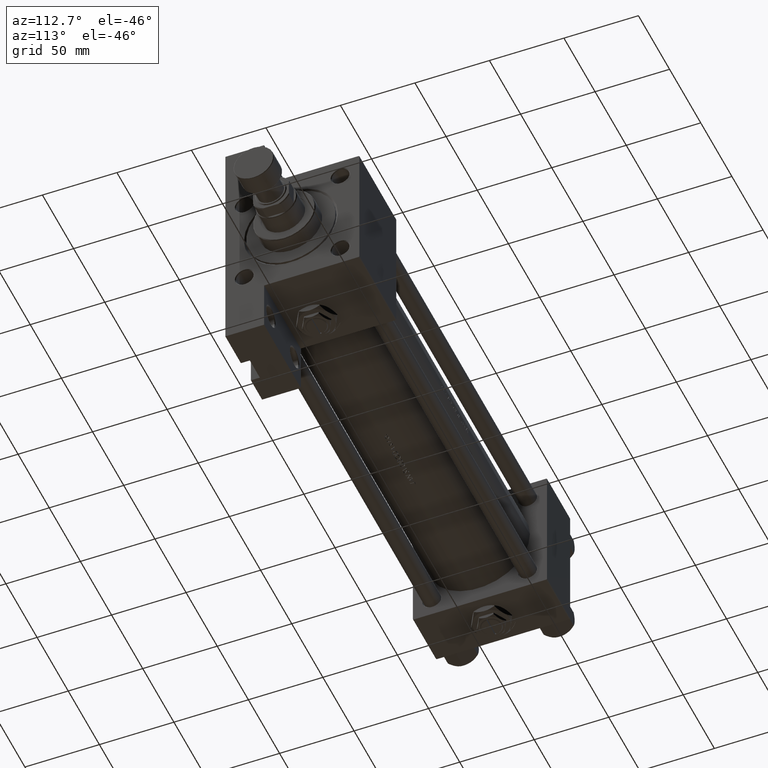
[diagram: clean part render]
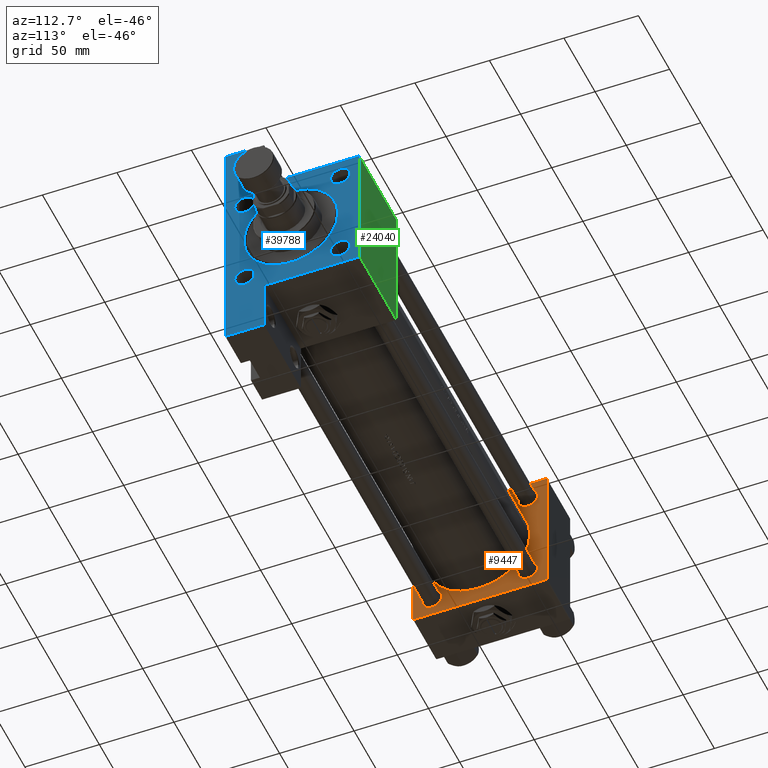
[diagram: same view with three faces highlighted in distinct colors, each labeled with its STEP entity id]
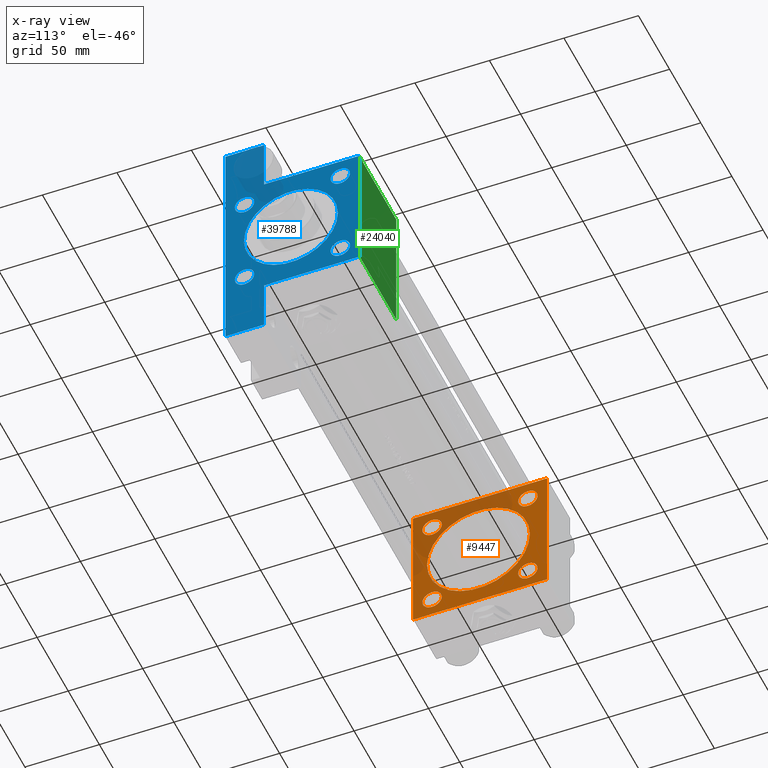
[diagram: x-ray of the same camera — body ghosted, the three highlighted faces saturated]
A machine part, auxiliary view with three faces highlighted in distinct colors.
The next image is the same camera in x-ray (body ghosted, the three faces saturated) — at least one of them is partly hidden behind the body in this view.
Their STEP definitions:

[orange] entity #9447 — the highlighted planar face has unit normal (-1, 0, -0).
#598 = EDGE_CURVE ( 'NONE', #38871, #3608, #38260, .T. ) ;
#798 = EDGE_LOOP ( 'NONE', ( #18175, #12157 ) ) ;
#1047 = DIRECTION ( 'NONE',  ( 0.000000000000000000, 0.000000000000000000, -1.000000000000000000 ) ) ;
#1239 = VECTOR ( 'NONE', #5825, 1000.000000000000114 ) ;
#1397 = CIRCLE ( 'NONE', #4635, 6.499999999999977796 ) ;
#1512 = EDGE_CURVE ( 'NONE', #44599, #5175, #39663, .T. ) ;
#1852 = FACE_BOUND ( 'NONE', #27197, .T. ) ;
#2523 = CIRCLE ( 'NONE', #15484, 34.49999999999999289 ) ;
#2929 = VECTOR ( 'NONE', #21690, 1000.000000000000114 ) ;
#3053 = VERTEX_POINT ( 'NONE', #46174 ) ;
#3078 = CARTESIAN_POINT ( 'NONE',  ( 37.00000000000000000, 44.49999999999998579, 45.00000000000001421 ) ) ;
#3127 = VERTEX_POINT ( 'NONE', #38814 ) ;
#3575 = LINE ( 'NONE', #3078, #35132 ) ;
#3608 = VERTEX_POINT ( 'NONE', #8748 ) ;
#3804 = CARTESIAN_POINT ( 'NONE',  ( 37.00000000000000000, 32.14999999999999147, -32.15000000000000568 ) ) ;
#3848 = ORIENTED_EDGE ( 'NONE', *, *, #20050, .T. ) ;
#4635 = AXIS2_PLACEMENT_3D ( 'NONE', #21201, #17629, #14069 ) ;
#4649 = PLANE ( 'NONE',  #11714 ) ;
#4668 = EDGE_CURVE ( 'NONE', #37748, #21903, #39915, .T. ) ;
#4730 = VECTOR ( 'NONE', #1047, 1000.000000000000000 ) ;
#5158 = FACE_BOUND ( 'NONE', #34799, .T. ) ;
#5175 = VERTEX_POINT ( 'NONE', #21342 ) ;
#5325 = CARTESIAN_POINT ( 'NONE',  ( 37.00000000000000000, 44.49999999999998579, 45.00000000000001421 ) ) ;
#5825 = DIRECTION ( 'NONE',  ( -0.000000000000000000, 0.7071067811865474617, 0.7071067811865474617 ) ) ;
#6373 = EDGE_CURVE ( 'NONE', #19336, #21423, #26223, .T. ) ;
#6535 = CARTESIAN_POINT ( 'NONE',  ( 37.00000000000000711, 0.000000000000000000, 33.49999999999998579 ) ) ;
#7042 = EDGE_CURVE ( 'NONE', #10413, #49376, #3575, .T. ) ;
#7147 = ORIENTED_EDGE ( 'NONE', *, *, #19635, .T. ) ;
#7801 = DIRECTION ( 'NONE',  ( 0.000000000000000000, 0.000000000000000000, 1.000000000000000000 ) ) ;
#7891 = LINE ( 'NONE', #43684, #4730 ) ;
#8435 = ORIENTED_EDGE ( 'NONE', *, *, #15475, .T. ) ;
#8439 = DIRECTION ( 'NONE',  ( -1.000000000000000000, 0.000000000000000000, -0.000000000000000000 ) ) ;
#8595 = DIRECTION ( 'NONE',  ( 0.000000000000000000, 0.000000000000000000, 1.000000000000000000 ) ) ;
#8659 = CIRCLE ( 'NONE', #38647, 6.499999999999977796 ) ;
#8707 = ORIENTED_EDGE ( 'NONE', *, *, #23691, .T. ) ;
#8748 = CARTESIAN_POINT ( 'NONE',  ( 37.00000000000000711, 4.225031457058367344E-15, -35.50000000000000711 ) ) ;
#9325 = DIRECTION ( 'NONE',  ( 0.000000000000000000, 0.000000000000000000, 1.000000000000000000 ) ) ;
#9447 = ADVANCED_FACE ( 'NONE', ( #1852, #44000, #5158, #9454, #20912, #27746 ), #4649, .F. ) ;
#9454 = FACE_BOUND ( 'NONE', #798, .T. ) ;
#10216 = CARTESIAN_POINT ( 'NONE',  ( 37.00000000000000000, 44.99999999999998579, 44.50000000000001421 ) ) ;
#10413 = VERTEX_POINT ( 'NONE', #10216 ) ;
#10937 = VECTOR ( 'NONE', #15648, 1000.000000000000000 ) ;
#11103 = EDGE_LOOP ( 'NONE', ( #21380, #36272 ) ) ;
#11714 = AXIS2_PLACEMENT_3D ( 'NONE', #17330, #31812, #47303 ) ;
#12157 = ORIENTED_EDGE ( 'NONE', *, *, #6373, .T. ) ;
#12425 = ORIENTED_EDGE ( 'NONE', *, *, #20390, .T. ) ;
#13014 = CARTESIAN_POINT ( 'NONE',  ( 37.00000000000000711, 0.000000000000000000, -1.000000000000007772 ) ) ;
#13735 = VERTEX_POINT ( 'NONE', #17809 ) ;
#14069 = DIRECTION ( 'NONE',  ( 0.000000000000000000, 0.000000000000000000, 1.000000000000000000 ) ) ;
#15052 = CARTESIAN_POINT ( 'NONE',  ( 37.00000000000000000, -45.00000000000000711, 44.49999999999997158 ) ) ;
#15475 = EDGE_CURVE ( 'NONE', #3053, #13735, #8659, .T. ) ;
#15484 = AXIS2_PLACEMENT_3D ( 'NONE', #13014, #26133, #48730 ) ;
#15648 = DIRECTION ( 'NONE',  ( 0.000000000000000000, 7.709882115452476934E-17, -1.000000000000000000 ) ) ;
#16180 = DIRECTION ( 'NONE',  ( 0.000000000000000000, -1.000000000000000000, -1.541976423090495387E-16 ) ) ;
#16385 = VERTEX_POINT ( 'NONE', #45461 ) ;
#16992 = EDGE_CURVE ( 'NONE', #21903, #37748, #35459, .T. ) ;
#17299 = AXIS2_PLACEMENT_3D ( 'NONE', #35480, #42593, #7801 ) ;
#17318 = DIRECTION ( 'NONE',  ( 0.000000000000000000, -1.000000000000000000, -1.541976423090495633E-16 ) ) ;
#17330 = CARTESIAN_POINT ( 'NONE',  ( 37.00000000000000000, 0.000000000000000000, 0.000000000000000000 ) ) ;
#17629 = DIRECTION ( 'NONE',  ( -1.000000000000000000, 0.000000000000000000, -0.000000000000000000 ) ) ;
#17725 = DIRECTION ( 'NONE',  ( 0.000000000000000000, 0.7071067811865474617, -0.7071067811865474617 ) ) ;
#17746 = DIRECTION ( 'NONE',  ( 0.000000000000000000, 0.000000000000000000, 1.000000000000000000 ) ) ;
#17809 = CARTESIAN_POINT ( 'NONE',  ( 37.00000000000000000, 32.14999999999999147, -25.65000000000002700 ) ) ;
#18175 = ORIENTED_EDGE ( 'NONE', *, *, #41612, .T. ) ;
#18695 = CARTESIAN_POINT ( 'NONE',  ( 37.00000000000000000, 32.14999999999999147, 38.64999999999998437 ) ) ;
#18846 = VECTOR ( 'NONE', #17318, 1000.000000000000000 ) ;
#19336 = VERTEX_POINT ( 'NONE', #18695 ) ;
#19559 = DIRECTION ( 'NONE',  ( -1.000000000000000000, 0.000000000000000000, -0.000000000000000000 ) ) ;
#19635 = EDGE_CURVE ( 'NONE', #13735, #3053, #1397, .T. ) ;
#20050 = EDGE_CURVE ( 'NONE', #44599, #3127, #21084, .T. ) ;
#20390 = EDGE_CURVE ( 'NONE', #30279, #33167, #49854, .T. ) ;
#20912 = FACE_BOUND ( 'NONE', #11103, .T. ) ;
#21084 = LINE ( 'NONE', #24642, #1239 ) ;
#21201 = CARTESIAN_POINT ( 'NONE',  ( 37.00000000000000000, 32.14999999999999147, -32.15000000000000568 ) ) ;
#21342 = CARTESIAN_POINT ( 'NONE',  ( 37.00000000000000000, -44.49999999999995737, -45.00000000000000000 ) ) ;
#21380 = ORIENTED_EDGE ( 'NONE', *, *, #598, .F. ) ;
#21423 = VERTEX_POINT ( 'NONE', #33065 ) ;
#21690 = DIRECTION ( 'NONE',  ( -0.000000000000000000, -0.7071067811865425767, -0.7071067811865524577 ) ) ;
#21903 = VERTEX_POINT ( 'NONE', #28075 ) ;
#21922 = CIRCLE ( 'NONE', #39738, 6.499999999999977796 ) ;
#23204 = DIRECTION ( 'NONE',  ( 0.000000000000000000, 0.000000000000000000, 1.000000000000000000 ) ) ;
#23691 = EDGE_CURVE ( 'NONE', #39763, #16385, #27576, .T. ) ;
#23813 = LINE ( 'NONE', #34985, #27490 ) ;
#24416 = AXIS2_PLACEMENT_3D ( 'NONE', #46287, #8439, #47046 ) ;
#24642 = CARTESIAN_POINT ( 'NONE',  ( 37.00000000000000000, 44.99999999999998579, -44.49999999999998579 ) ) ;
#26133 = DIRECTION ( 'NONE',  ( 1.000000000000000000, -0.000000000000000000, 0.000000000000000000 ) ) ;
#26223 = CIRCLE ( 'NONE', #17299, 6.499999999999977796 ) ;
#26482 = EDGE_CURVE ( 'NONE', #40179, #39763, #34350, .T. ) ;
#27176 = AXIS2_PLACEMENT_3D ( 'NONE', #38436, #35123, #23204 ) ;
#27197 = EDGE_LOOP ( 'NONE', ( #49648, #41428 ) ) ;
#27490 = VECTOR ( 'NONE', #16180, 1000.000000000000000 ) ;
#27548 = CARTESIAN_POINT ( 'NONE',  ( 37.00000000000000000, -32.14999999999997726, 25.65000000000003411 ) ) ;
#27576 = LINE ( 'NONE', #31140, #10937 ) ;
#27746 = FACE_OUTER_BOUND ( 'NONE', #49356, .T. ) ;
#27805 = ORIENTED_EDGE ( 'NONE', *, *, #7042, .T. ) ;
#28075 = CARTESIAN_POINT ( 'NONE',  ( 37.00000000000000000, -32.14999999999997726, -25.65000000000003411 ) ) ;
#28670 = DIRECTION ( 'NONE',  ( 1.000000000000000000, -0.000000000000000000, 0.000000000000000000 ) ) ;
#30080 = CIRCLE ( 'NONE', #24416, 6.499999999999977796 ) ;
#30279 = VERTEX_POINT ( 'NONE', #40231 ) ;
#31140 = CARTESIAN_POINT ( 'NONE',  ( 37.00000000000000000, -45.00000000000000711, 45.00000000000000000 ) ) ;
#31281 = ORIENTED_EDGE ( 'NONE', *, *, #1512, .F. ) ;
#31753 = ORIENTED_EDGE ( 'NONE', *, *, #32921, .T. ) ;
#31812 = DIRECTION ( 'NONE',  ( -1.000000000000000000, 0.000000000000000000, -0.000000000000000000 ) ) ;
#32512 = DIRECTION ( 'NONE',  ( 0.000000000000000000, 0.000000000000000000, 1.000000000000000000 ) ) ;
#32921 = EDGE_CURVE ( 'NONE', #49376, #40179, #23813, .T. ) ;
#33065 = CARTESIAN_POINT ( 'NONE',  ( 37.00000000000000000, 32.14999999999999147, 25.65000000000002700 ) ) ;
#33167 = VERTEX_POINT ( 'NONE', #27548 ) ;
#34350 = LINE ( 'NONE', #15052, #2929 ) ;
#34799 = EDGE_LOOP ( 'NONE', ( #44978, #12425 ) ) ;
#34892 = EDGE_CURVE ( 'NONE', #10413, #3127, #7891, .T. ) ;
#34985 = CARTESIAN_POINT ( 'NONE',  ( 37.00000000000000000, 44.99999999999998579, 45.00000000000001421 ) ) ;
#35123 = DIRECTION ( 'NONE',  ( -1.000000000000000000, 0.000000000000000000, -0.000000000000000000 ) ) ;
#35132 = VECTOR ( 'NONE', #49519, 1000.000000000000114 ) ;
#35459 = CIRCLE ( 'NONE', #46000, 6.499999999999977796 ) ;
#35480 = CARTESIAN_POINT ( 'NONE',  ( 37.00000000000000000, 32.14999999999999147, 32.15000000000000568 ) ) ;
#36272 = ORIENTED_EDGE ( 'NONE', *, *, #41666, .F. ) ;
#36744 = CARTESIAN_POINT ( 'NONE',  ( 37.00000000000000000, -32.14999999999997726, -32.15000000000001279 ) ) ;
#36779 = EDGE_LOOP ( 'NONE', ( #8435, #7147 ) ) ;
#37047 = CARTESIAN_POINT ( 'NONE',  ( 37.00000000000000711, 0.000000000000000000, -1.000000000000007772 ) ) ;
#37083 = CARTESIAN_POINT ( 'NONE',  ( 37.00000000000000000, -32.14999999999997726, 32.15000000000001279 ) ) ;
#37654 = ORIENTED_EDGE ( 'NONE', *, *, #26482, .T. ) ;
#37748 = VERTEX_POINT ( 'NONE', #49676 ) ;
#37777 = CARTESIAN_POINT ( 'NONE',  ( 37.00000000000000000, -44.49999999999998579, -45.00000000000000000 ) ) ;
#38260 = CIRCLE ( 'NONE', #40676, 34.49999999999999289 ) ;
#38284 = AXIS2_PLACEMENT_3D ( 'NONE', #36744, #40803, #9325 ) ;
#38436 = CARTESIAN_POINT ( 'NONE',  ( 37.00000000000000000, -32.14999999999997726, 32.15000000000001279 ) ) ;
#38630 = EDGE_CURVE ( 'NONE', #33167, #30279, #21922, .T. ) ;
#38647 = AXIS2_PLACEMENT_3D ( 'NONE', #3804, #19559, #8595 ) ;
#38814 = CARTESIAN_POINT ( 'NONE',  ( 37.00000000000000000, 44.99999999999998579, -44.49999999999995737 ) ) ;
#38871 = VERTEX_POINT ( 'NONE', #6535 ) ;
#39594 = CARTESIAN_POINT ( 'NONE',  ( 37.00000000000000000, -44.49999999999995737, 45.00000000000000000 ) ) ;
#39663 = LINE ( 'NONE', #43479, #18846 ) ;
#39678 = ORIENTED_EDGE ( 'NONE', *, *, #44773, .T. ) ;
#39738 = AXIS2_PLACEMENT_3D ( 'NONE', #37083, #44691, #32512 ) ;
#39763 = VERTEX_POINT ( 'NONE', #46023 ) ;
#39779 = DIRECTION ( 'NONE',  ( -1.000000000000000000, 0.000000000000000000, -0.000000000000000000 ) ) ;
#39915 = CIRCLE ( 'NONE', #38284, 6.499999999999977796 ) ;
#40179 = VERTEX_POINT ( 'NONE', #39594 ) ;
#40231 = CARTESIAN_POINT ( 'NONE',  ( 37.00000000000000000, -32.14999999999997726, 38.64999999999999147 ) ) ;
#40676 = AXIS2_PLACEMENT_3D ( 'NONE', #37047, #28670, #17746 ) ;
#40803 = DIRECTION ( 'NONE',  ( -1.000000000000000000, 0.000000000000000000, -0.000000000000000000 ) ) ;
#41428 = ORIENTED_EDGE ( 'NONE', *, *, #16992, .T. ) ;
#41612 = EDGE_CURVE ( 'NONE', #21423, #19336, #30080, .T. ) ;
#41666 = EDGE_CURVE ( 'NONE', #3608, #38871, #2523, .T. ) ;
#42593 = DIRECTION ( 'NONE',  ( -1.000000000000000000, 0.000000000000000000, -0.000000000000000000 ) ) ;
#42641 = CARTESIAN_POINT ( 'NONE',  ( 37.00000000000000000, 44.49999999999998579, -44.99999999999998579 ) ) ;
#43479 = CARTESIAN_POINT ( 'NONE',  ( 37.00000000000000000, 44.99999999999998579, -44.99999999999998579 ) ) ;
#43684 = CARTESIAN_POINT ( 'NONE',  ( 37.00000000000000000, 44.99999999999998579, 45.00000000000001421 ) ) ;
#43982 = VECTOR ( 'NONE', #17725, 1000.000000000000114 ) ;
#44000 = FACE_BOUND ( 'NONE', #36779, .T. ) ;
#44588 = DIRECTION ( 'NONE',  ( 0.000000000000000000, 0.000000000000000000, 1.000000000000000000 ) ) ;
#44599 = VERTEX_POINT ( 'NONE', #42641 ) ;
#44691 = DIRECTION ( 'NONE',  ( -1.000000000000000000, 0.000000000000000000, -0.000000000000000000 ) ) ;
#44773 = EDGE_CURVE ( 'NONE', #16385, #5175, #48193, .T. ) ;
#44978 = ORIENTED_EDGE ( 'NONE', *, *, #38630, .T. ) ;
#45461 = CARTESIAN_POINT ( 'NONE',  ( 37.00000000000000000, -45.00000000000000000, -44.49999999999995737 ) ) ;
#45818 = ORIENTED_EDGE ( 'NONE', *, *, #34892, .F. ) ;
#46000 = AXIS2_PLACEMENT_3D ( 'NONE', #48394, #39779, #44588 ) ;
#46023 = CARTESIAN_POINT ( 'NONE',  ( 37.00000000000000000, -45.00000000000000711, 44.49999999999997158 ) ) ;
#46174 = CARTESIAN_POINT ( 'NONE',  ( 37.00000000000000000, 32.14999999999999147, -38.64999999999998437 ) ) ;
#46287 = CARTESIAN_POINT ( 'NONE',  ( 37.00000000000000000, 32.14999999999999147, 32.15000000000000568 ) ) ;
#47046 = DIRECTION ( 'NONE',  ( 0.000000000000000000, 0.000000000000000000, 1.000000000000000000 ) ) ;
#47303 = DIRECTION ( 'NONE',  ( -0.000000000000000000, 0.000000000000000000, 1.000000000000000000 ) ) ;
#48193 = LINE ( 'NONE', #37777, #43982 ) ;
#48394 = CARTESIAN_POINT ( 'NONE',  ( 37.00000000000000000, -32.14999999999997726, -32.15000000000001279 ) ) ;
#48730 = DIRECTION ( 'NONE',  ( 0.000000000000000000, 0.000000000000000000, 1.000000000000000000 ) ) ;
#49356 = EDGE_LOOP ( 'NONE', ( #31281, #3848, #45818, #27805, #31753, #37654, #8707, #39678 ) ) ;
#49376 = VERTEX_POINT ( 'NONE', #5325 ) ;
#49519 = DIRECTION ( 'NONE',  ( 0.000000000000000000, -0.7071067811865474617, 0.7071067811865474617 ) ) ;
#49648 = ORIENTED_EDGE ( 'NONE', *, *, #4668, .T. ) ;
#49676 = CARTESIAN_POINT ( 'NONE',  ( 37.00000000000000000, -32.14999999999997726, -38.64999999999999147 ) ) ;
#49854 = CIRCLE ( 'NONE', #27176, 6.499999999999977796 ) ;

[blue] entity #39788 — the highlighted planar face has unit normal (-1, 0, -0).
#328 = CARTESIAN_POINT ( 'NONE',  ( 337.9999999999999432, -32.15000000000001279, -25.65000000000005542 ) ) ;
#680 = CARTESIAN_POINT ( 'NONE',  ( 337.9999999999999432, -32.14999999999999147, 32.14999999999999147 ) ) ;
#861 = AXIS2_PLACEMENT_3D ( 'NONE', #12236, #12748, #16045 ) ;
#1088 = ORIENTED_EDGE ( 'NONE', *, *, #3394, .T. ) ;
#1173 = CARTESIAN_POINT ( 'NONE',  ( 337.9999999999999432, -44.99999999999999289, -18.99999999999997513 ) ) ;
#2439 = CARTESIAN_POINT ( 'NONE',  ( 337.9999999999999432, 0.000000000000000000, -1.000000000000000888 ) ) ;
#2459 = VERTEX_POINT ( 'NONE', #22460 ) ;
#3233 = EDGE_CURVE ( 'NONE', #9984, #6930, #4330, .T. ) ;
#3394 = EDGE_CURVE ( 'NONE', #29459, #38740, #48111, .T. ) ;
#3837 = DIRECTION ( 'NONE',  ( 0.000000000000000000, 0.000000000000000000, 1.000000000000000000 ) ) ;
#3969 = DIRECTION ( 'NONE',  ( -1.000000000000000000, -0.000000000000000000, -0.000000000000000000 ) ) ;
#4081 = DIRECTION ( 'NONE',  ( 0.000000000000000000, 0.000000000000000000, 1.000000000000000000 ) ) ;
#4266 = VERTEX_POINT ( 'NONE', #4576 ) ;
#4330 = CIRCLE ( 'NONE', #29441, 31.49999999999997158 ) ;
#4371 = FACE_BOUND ( 'NONE', #29149, .T. ) ;
#4551 = ORIENTED_EDGE ( 'NONE', *, *, #11485, .T. ) ;
#4576 = CARTESIAN_POINT ( 'NONE',  ( 337.9999999999999432, 45.00000000000001421, 44.49999999999994316 ) ) ;
#4609 = EDGE_CURVE ( 'NONE', #47110, #13763, #42611, .T. ) ;
#4767 = CARTESIAN_POINT ( 'NONE',  ( 337.9999999999999432, 79.99999999999998579, -19.00000000000000000 ) ) ;
#4885 = ORIENTED_EDGE ( 'NONE', *, *, #44537, .F. ) ;
#5127 = EDGE_CURVE ( 'NONE', #11930, #17017, #48825, .T. ) ;
#5156 = ORIENTED_EDGE ( 'NONE', *, *, #20957, .T. ) ;
#5598 = DIRECTION ( 'NONE',  ( 0.000000000000000000, 0.000000000000000000, -1.000000000000000000 ) ) ;
#5917 = EDGE_LOOP ( 'NONE', ( #20073, #37258 ) ) ;
#6669 = AXIS2_PLACEMENT_3D ( 'NONE', #17270, #43936, #40611 ) ;
#6853 = CARTESIAN_POINT ( 'NONE',  ( 337.9999999999999432, 79.99999999999998579, -19.00000000000000000 ) ) ;
#6886 = DIRECTION ( 'NONE',  ( -1.000000000000000000, -0.000000000000000000, -0.000000000000000000 ) ) ;
#6930 = VERTEX_POINT ( 'NONE', #14747 ) ;
#6975 = EDGE_CURVE ( 'NONE', #36280, #9082, #26679, .T. ) ;
#7101 = VERTEX_POINT ( 'NONE', #46720 ) ;
#7110 = CARTESIAN_POINT ( 'NONE',  ( 337.9999999999999432, 45.00000000000001421, 45.00000000000000000 ) ) ;
#7255 = VECTOR ( 'NONE', #42756, 1000.000000000000114 ) ;
#7820 = DIRECTION ( 'NONE',  ( 0.000000000000000000, 0.000000000000000000, -1.000000000000000000 ) ) ;
#8015 = CARTESIAN_POINT ( 'NONE',  ( 337.9999999999999432, 0.000000000000000000, -1.000000000000000888 ) ) ;
#8037 = ORIENTED_EDGE ( 'NONE', *, *, #40889, .T. ) ;
#8119 = DIRECTION ( 'NONE',  ( 0.000000000000000000, -1.000000000000000000, 0.000000000000000000 ) ) ;
#8250 = VERTEX_POINT ( 'NONE', #21520 ) ;
#8622 = VECTOR ( 'NONE', #41046, 1000.000000000000000 ) ;
#8927 = FACE_OUTER_BOUND ( 'NONE', #39962, .T. ) ;
#9082 = VERTEX_POINT ( 'NONE', #1173 ) ;
#9407 = AXIS2_PLACEMENT_3D ( 'NONE', #16443, #47165, #47911 ) ;
#9984 = VERTEX_POINT ( 'NONE', #34374 ) ;
#10062 = VECTOR ( 'NONE', #15140, 1000.000000000000114 ) ;
#10301 = DIRECTION ( 'NONE',  ( -1.000000000000000000, -0.000000000000000000, -0.000000000000000000 ) ) ;
#10612 = VERTEX_POINT ( 'NONE', #32508 ) ;
#10668 = AXIS2_PLACEMENT_3D ( 'NONE', #38383, #10712, #49543 ) ;
#10712 = DIRECTION ( 'NONE',  ( -1.000000000000000000, -0.000000000000000000, -0.000000000000000000 ) ) ;
#11485 = EDGE_CURVE ( 'NONE', #2459, #8250, #24918, .T. ) ;
#11607 = AXIS2_PLACEMENT_3D ( 'NONE', #28173, #45100, #24628 ) ;
#11659 = ORIENTED_EDGE ( 'NONE', *, *, #42817, .T. ) ;
#11666 = DIRECTION ( 'NONE',  ( 0.000000000000000000, -1.000000000000000000, 0.000000000000000000 ) ) ;
#11782 = CARTESIAN_POINT ( 'NONE',  ( 337.9999999999999432, 44.49999999999995737, 45.00000000000000000 ) ) ;
#11930 = VERTEX_POINT ( 'NONE', #27962 ) ;
#12236 = CARTESIAN_POINT ( 'NONE',  ( 337.9999999999999432, 0.000000000000000000, 0.000000000000000000 ) ) ;
#12748 = DIRECTION ( 'NONE',  ( -1.000000000000000000, 0.000000000000000000, -0.000000000000000000 ) ) ;
#13618 = CARTESIAN_POINT ( 'NONE',  ( 337.9999999999999432, -44.49999999999997158, 44.99999999999998579 ) ) ;
#13763 = VERTEX_POINT ( 'NONE', #38112 ) ;
#13933 = EDGE_CURVE ( 'NONE', #9082, #2459, #48920, .T. ) ;
#13947 = CARTESIAN_POINT ( 'NONE',  ( 337.9999999999999432, 32.14999999999999147, 38.64999999999995595 ) ) ;
#13950 = VERTEX_POINT ( 'NONE', #13618 ) ;
#14064 = ORIENTED_EDGE ( 'NONE', *, *, #27012, .T. ) ;
#14079 = DIRECTION ( 'NONE',  ( 0.000000000000000000, 0.000000000000000000, 1.000000000000000000 ) ) ;
#14747 = CARTESIAN_POINT ( 'NONE',  ( 337.9999999999999432, 3.857637417314158745E-15, 30.49999999999997158 ) ) ;
#14791 = VECTOR ( 'NONE', #11666, 1000.000000000000000 ) ;
#15140 = DIRECTION ( 'NONE',  ( -0.000000000000000000, -0.7071067811865474617, -0.7071067811865474617 ) ) ;
#16045 = DIRECTION ( 'NONE',  ( -0.000000000000000000, 0.000000000000000000, 1.000000000000000000 ) ) ;
#16285 = EDGE_CURVE ( 'NONE', #4266, #21730, #25167, .T. ) ;
#16443 = CARTESIAN_POINT ( 'NONE',  ( 337.9999999999999432, 32.14999999999999147, 32.15000000000000568 ) ) ;
#16791 = CARTESIAN_POINT ( 'NONE',  ( 337.9999999999999432, -80.00000000000004263, -19.00000000000000000 ) ) ;
#17017 = VERTEX_POINT ( 'NONE', #21497 ) ;
#17270 = CARTESIAN_POINT ( 'NONE',  ( 337.9999999999999432, -32.14999999999999147, 32.14999999999999147 ) ) ;
#17910 = ORIENTED_EDGE ( 'NONE', *, *, #25562, .T. ) ;
#18318 = CARTESIAN_POINT ( 'NONE',  ( 337.9999999999999432, -45.00000000000000000, 44.99999999999998579 ) ) ;
#18587 = AXIS2_PLACEMENT_3D ( 'NONE', #8015, #3969, #30623 ) ;
#19114 = CIRCLE ( 'NONE', #22338, 6.499999999999950262 ) ;
#19134 = ORIENTED_EDGE ( 'NONE', *, *, #3233, .T. ) ;
#19224 = CARTESIAN_POINT ( 'NONE',  ( 337.9999999999999432, -45.00000000000000000, 44.49999999999998579 ) ) ;
#19866 = EDGE_CURVE ( 'NONE', #7101, #20095, #47587, .T. ) ;
#19884 = PLANE ( 'NONE',  #861 ) ;
#19986 = EDGE_CURVE ( 'NONE', #38740, #29459, #45807, .T. ) ;
#20073 = ORIENTED_EDGE ( 'NONE', *, *, #21807, .T. ) ;
#20095 = VERTEX_POINT ( 'NONE', #13947 ) ;
#20370 = CIRCLE ( 'NONE', #39811, 6.499999999999950262 ) ;
#20445 = CARTESIAN_POINT ( 'NONE',  ( 337.9999999999999432, 32.14999999999999147, -25.65000000000005542 ) ) ;
#20957 = EDGE_CURVE ( 'NONE', #13950, #36280, #41816, .T. ) ;
#21372 = DIRECTION ( 'NONE',  ( 0.000000000000000000, 0.000000000000000000, -1.000000000000000000 ) ) ;
#21497 = CARTESIAN_POINT ( 'NONE',  ( 337.9999999999999432, -32.14999999999999147, 25.65000000000004121 ) ) ;
#21520 = CARTESIAN_POINT ( 'NONE',  ( 337.9999999999999432, -80.00000000000004263, -45.00000000000000000 ) ) ;
#21730 = VERTEX_POINT ( 'NONE', #41132 ) ;
#21807 = EDGE_CURVE ( 'NONE', #17017, #11930, #19114, .T. ) ;
#21808 = ORIENTED_EDGE ( 'NONE', *, *, #13933, .T. ) ;
#21997 = DIRECTION ( 'NONE',  ( 0.000000000000000000, 0.000000000000000000, 1.000000000000000000 ) ) ;
#22213 = CARTESIAN_POINT ( 'NONE',  ( 337.9999999999999432, -32.15000000000001279, -32.15000000000000568 ) ) ;
#22338 = AXIS2_PLACEMENT_3D ( 'NONE', #680, #47379, #28331 ) ;
#22460 = CARTESIAN_POINT ( 'NONE',  ( 337.9999999999999432, -80.00000000000004263, -19.00000000000000000 ) ) ;
#22851 = EDGE_LOOP ( 'NONE', ( #49351, #14064 ) ) ;
#22953 = DIRECTION ( 'NONE',  ( -1.000000000000000000, -0.000000000000000000, -0.000000000000000000 ) ) ;
#23358 = LINE ( 'NONE', #7110, #36157 ) ;
#23917 = AXIS2_PLACEMENT_3D ( 'NONE', #36052, #24136, #4081 ) ;
#24136 = DIRECTION ( 'NONE',  ( -1.000000000000000000, -0.000000000000000000, -0.000000000000000000 ) ) ;
#24628 = DIRECTION ( 'NONE',  ( 0.000000000000000000, 0.000000000000000000, 1.000000000000000000 ) ) ;
#24918 = LINE ( 'NONE', #16791, #28818 ) ;
#25167 = LINE ( 'NONE', #40645, #26535 ) ;
#25312 = VECTOR ( 'NONE', #7820, 1000.000000000000000 ) ;
#25562 = EDGE_CURVE ( 'NONE', #26404, #13950, #23358, .T. ) ;
#26404 = VERTEX_POINT ( 'NONE', #44532 ) ;
#26535 = VECTOR ( 'NONE', #21372, 1000.000000000000000 ) ;
#26679 = LINE ( 'NONE', #18318, #37570 ) ;
#26900 = CARTESIAN_POINT ( 'NONE',  ( 337.9999999999999432, 32.14999999999999147, -38.64999999999996305 ) ) ;
#26912 = DIRECTION ( 'NONE',  ( 0.000000000000000000, -1.000000000000000000, -1.541976423090495140E-16 ) ) ;
#27012 = EDGE_CURVE ( 'NONE', #20095, #7101, #29705, .T. ) ;
#27398 = CARTESIAN_POINT ( 'NONE',  ( 337.9999999999999432, 45.00000000000001421, -45.00000000000000000 ) ) ;
#27962 = CARTESIAN_POINT ( 'NONE',  ( 337.9999999999999432, -32.14999999999999147, 38.64999999999994174 ) ) ;
#28173 = CARTESIAN_POINT ( 'NONE',  ( 337.9999999999999432, 32.14999999999999147, -32.15000000000000568 ) ) ;
#28227 = FACE_BOUND ( 'NONE', #36612, .T. ) ;
#28331 = DIRECTION ( 'NONE',  ( 0.000000000000000000, 0.000000000000000000, 1.000000000000000000 ) ) ;
#28818 = VECTOR ( 'NONE', #5598, 1000.000000000000000 ) ;
#29149 = EDGE_LOOP ( 'NONE', ( #42011, #1088 ) ) ;
#29441 = AXIS2_PLACEMENT_3D ( 'NONE', #2439, #10301, #21997 ) ;
#29459 = VERTEX_POINT ( 'NONE', #20445 ) ;
#29705 = CIRCLE ( 'NONE', #9407, 6.499999999999950262 ) ;
#30623 = DIRECTION ( 'NONE',  ( 0.000000000000000000, 0.000000000000000000, 1.000000000000000000 ) ) ;
#30699 = LINE ( 'NONE', #27398, #14791 ) ;
#31536 = CIRCLE ( 'NONE', #18587, 31.49999999999997158 ) ;
#32508 = CARTESIAN_POINT ( 'NONE',  ( 337.9999999999999432, -32.15000000000001279, -38.64999999999996305 ) ) ;
#33351 = CIRCLE ( 'NONE', #10668, 6.499999999999950262 ) ;
#34142 = VECTOR ( 'NONE', #8119, 1000.000000000000000 ) ;
#34374 = CARTESIAN_POINT ( 'NONE',  ( 337.9999999999999432, 0.000000000000000000, -32.49999999999997158 ) ) ;
#34848 = ORIENTED_EDGE ( 'NONE', *, *, #4609, .F. ) ;
#35223 = ORIENTED_EDGE ( 'NONE', *, *, #16285, .F. ) ;
#35843 = FACE_BOUND ( 'NONE', #22851, .T. ) ;
#36052 = CARTESIAN_POINT ( 'NONE',  ( 337.9999999999999432, 32.14999999999999147, -32.15000000000000568 ) ) ;
#36157 = VECTOR ( 'NONE', #26912, 1000.000000000000000 ) ;
#36280 = VERTEX_POINT ( 'NONE', #40561 ) ;
#36612 = EDGE_LOOP ( 'NONE', ( #44367, #11659 ) ) ;
#36962 = EDGE_CURVE ( 'NONE', #6930, #9984, #31536, .T. ) ;
#37258 = ORIENTED_EDGE ( 'NONE', *, *, #5127, .T. ) ;
#37570 = VECTOR ( 'NONE', #49280, 1000.000000000000000 ) ;
#38112 = CARTESIAN_POINT ( 'NONE',  ( 337.9999999999999432, 79.99999999999998579, -45.00000000000000000 ) ) ;
#38129 = EDGE_CURVE ( 'NONE', #4266, #26404, #42998, .T. ) ;
#38383 = CARTESIAN_POINT ( 'NONE',  ( 337.9999999999999432, -32.15000000000001279, -32.15000000000000568 ) ) ;
#38740 = VERTEX_POINT ( 'NONE', #26900 ) ;
#39116 = CARTESIAN_POINT ( 'NONE',  ( 337.9999999999999432, 79.99999999999998579, -19.00000000000000000 ) ) ;
#39788 = ADVANCED_FACE ( 'NONE', ( #35843, #47276, #28227, #4371, #43721, #8927 ), #19884, .F. ) ;
#39811 = AXIS2_PLACEMENT_3D ( 'NONE', #22213, #22953, #14079 ) ;
#39962 = EDGE_LOOP ( 'NONE', ( #35223, #42729, #17910, #5156, #46440, #21808, #4551, #4885, #34848, #8037 ) ) ;
#40561 = CARTESIAN_POINT ( 'NONE',  ( 337.9999999999999432, -45.00000000000000000, 44.49999999999998579 ) ) ;
#40611 = DIRECTION ( 'NONE',  ( 0.000000000000000000, 0.000000000000000000, 1.000000000000000000 ) ) ;
#40645 = CARTESIAN_POINT ( 'NONE',  ( 337.9999999999999432, 45.00000000000001421, 45.00000000000000000 ) ) ;
#40889 = EDGE_CURVE ( 'NONE', #47110, #21730, #47230, .T. ) ;
#41046 = DIRECTION ( 'NONE',  ( -0.000000000000000000, -1.000000000000000000, -0.000000000000000000 ) ) ;
#41132 = CARTESIAN_POINT ( 'NONE',  ( 337.9999999999999432, 44.99999999999992895, -19.00000000000000000 ) ) ;
#41572 = EDGE_CURVE ( 'NONE', #10612, #47743, #20370, .T. ) ;
#41816 = LINE ( 'NONE', #19224, #10062 ) ;
#42011 = ORIENTED_EDGE ( 'NONE', *, *, #19986, .T. ) ;
#42611 = LINE ( 'NONE', #4767, #25312 ) ;
#42729 = ORIENTED_EDGE ( 'NONE', *, *, #38129, .T. ) ;
#42756 = DIRECTION ( 'NONE',  ( 0.000000000000000000, -0.7071067811865474617, 0.7071067811865474617 ) ) ;
#42817 = EDGE_CURVE ( 'NONE', #47743, #10612, #33351, .T. ) ;
#42998 = LINE ( 'NONE', #11782, #7255 ) ;
#43721 = FACE_BOUND ( 'NONE', #44789, .T. ) ;
#43936 = DIRECTION ( 'NONE',  ( -1.000000000000000000, -0.000000000000000000, -0.000000000000000000 ) ) ;
#44367 = ORIENTED_EDGE ( 'NONE', *, *, #41572, .T. ) ;
#44532 = CARTESIAN_POINT ( 'NONE',  ( 337.9999999999999432, 44.49999999999995737, 45.00000000000000000 ) ) ;
#44537 = EDGE_CURVE ( 'NONE', #13763, #8250, #30699, .T. ) ;
#44789 = EDGE_LOOP ( 'NONE', ( #19134, #48795 ) ) ;
#45100 = DIRECTION ( 'NONE',  ( -1.000000000000000000, -0.000000000000000000, -0.000000000000000000 ) ) ;
#45165 = AXIS2_PLACEMENT_3D ( 'NONE', #50035, #6886, #3837 ) ;
#45807 = CIRCLE ( 'NONE', #23917, 6.499999999999950262 ) ;
#46440 = ORIENTED_EDGE ( 'NONE', *, *, #6975, .T. ) ;
#46720 = CARTESIAN_POINT ( 'NONE',  ( 337.9999999999999432, 32.14999999999999147, 25.65000000000005542 ) ) ;
#47110 = VERTEX_POINT ( 'NONE', #6853 ) ;
#47165 = DIRECTION ( 'NONE',  ( -1.000000000000000000, -0.000000000000000000, -0.000000000000000000 ) ) ;
#47230 = LINE ( 'NONE', #39116, #34142 ) ;
#47276 = FACE_BOUND ( 'NONE', #5917, .T. ) ;
#47379 = DIRECTION ( 'NONE',  ( -1.000000000000000000, -0.000000000000000000, -0.000000000000000000 ) ) ;
#47587 = CIRCLE ( 'NONE', #45165, 6.499999999999950262 ) ;
#47743 = VERTEX_POINT ( 'NONE', #328 ) ;
#47911 = DIRECTION ( 'NONE',  ( 0.000000000000000000, 0.000000000000000000, 1.000000000000000000 ) ) ;
#48111 = CIRCLE ( 'NONE', #11607, 6.499999999999950262 ) ;
#48795 = ORIENTED_EDGE ( 'NONE', *, *, #36962, .T. ) ;
#48825 = CIRCLE ( 'NONE', #6669, 6.499999999999950262 ) ;
#48920 = LINE ( 'NONE', #49165, #8622 ) ;
#49165 = CARTESIAN_POINT ( 'NONE',  ( 337.9999999999999432, -80.00000000000004263, -19.00000000000000000 ) ) ;
#49280 = DIRECTION ( 'NONE',  ( 0.000000000000000000, 7.709882115452478166E-17, -1.000000000000000000 ) ) ;
#49351 = ORIENTED_EDGE ( 'NONE', *, *, #19866, .T. ) ;
#49543 = DIRECTION ( 'NONE',  ( 0.000000000000000000, 0.000000000000000000, 1.000000000000000000 ) ) ;
#50035 = CARTESIAN_POINT ( 'NONE',  ( 337.9999999999999432, 32.14999999999999147, 32.15000000000000568 ) ) ;

[green] entity #24040 — the highlighted planar face has unit normal (0, -1, -0).
#1771 = ORIENTED_EDGE ( 'NONE', *, *, #44215, .T. ) ;
#1934 = CARTESIAN_POINT ( 'NONE',  ( 337.9999999999999432, 45.00000000000001421, 45.00000000000000000 ) ) ;
#3619 = EDGE_LOOP ( 'NONE', ( #42901, #22028, #17863, #1771 ) ) ;
#3997 = DIRECTION ( 'NONE',  ( -1.000000000000000000, 0.000000000000000000, 0.000000000000000000 ) ) ;
#7110 = CARTESIAN_POINT ( 'NONE',  ( 337.9999999999999432, 45.00000000000001421, 45.00000000000000000 ) ) ;
#12095 = LINE ( 'NONE', #46877, #30158 ) ;
#13618 = CARTESIAN_POINT ( 'NONE',  ( 337.9999999999999432, -44.49999999999997158, 44.99999999999998579 ) ) ;
#13950 = VERTEX_POINT ( 'NONE', #13618 ) ;
#14595 = DIRECTION ( 'NONE',  ( 0.000000000000000000, 1.000000000000000000, 1.541976423090495387E-16 ) ) ;
#15401 = DIRECTION ( 'NONE',  ( 1.000000000000000000, 0.000000000000000000, 0.000000000000000000 ) ) ;
#15923 = CARTESIAN_POINT ( 'NONE',  ( 278.9999999999999432, 44.49999999999995737, 45.00000000000000000 ) ) ;
#16667 = AXIS2_PLACEMENT_3D ( 'NONE', #1934, #37709, #14595 ) ;
#16795 = EDGE_CURVE ( 'NONE', #26404, #38093, #31407, .T. ) ;
#17863 = ORIENTED_EDGE ( 'NONE', *, *, #48033, .T. ) ;
#18561 = LINE ( 'NONE', #37603, #46309 ) ;
#22028 = ORIENTED_EDGE ( 'NONE', *, *, #16795, .T. ) ;
#23358 = LINE ( 'NONE', #7110, #36157 ) ;
#24040 = ADVANCED_FACE ( 'NONE', ( #37205 ), #32887, .F. ) ;
#24919 = VECTOR ( 'NONE', #3997, 1000.000000000000000 ) ;
#25562 = EDGE_CURVE ( 'NONE', #26404, #13950, #23358, .T. ) ;
#26404 = VERTEX_POINT ( 'NONE', #44532 ) ;
#26912 = DIRECTION ( 'NONE',  ( 0.000000000000000000, -1.000000000000000000, -1.541976423090495140E-16 ) ) ;
#30158 = VECTOR ( 'NONE', #15401, 1000.000000000000000 ) ;
#31077 = CARTESIAN_POINT ( 'NONE',  ( 278.9999999999999432, 44.49999999999995737, 45.00000000000000000 ) ) ;
#31407 = LINE ( 'NONE', #15923, #24919 ) ;
#32887 = PLANE ( 'NONE',  #16667 ) ;
#33278 = DIRECTION ( 'NONE',  ( 0.000000000000000000, -1.000000000000000000, -1.541976423090495140E-16 ) ) ;
#33866 = CARTESIAN_POINT ( 'NONE',  ( 278.9999999999999432, -44.49999999999997158, 44.99999999999998579 ) ) ;
#36157 = VECTOR ( 'NONE', #26912, 1000.000000000000000 ) ;
#37205 = FACE_OUTER_BOUND ( 'NONE', #3619, .T. ) ;
#37603 = CARTESIAN_POINT ( 'NONE',  ( 278.9999999999999432, 45.00000000000001421, 45.00000000000000000 ) ) ;
#37709 = DIRECTION ( 'NONE',  ( 0.000000000000000000, 1.541976423090495387E-16, -1.000000000000000000 ) ) ;
#38093 = VERTEX_POINT ( 'NONE', #31077 ) ;
#41467 = VERTEX_POINT ( 'NONE', #33866 ) ;
#42901 = ORIENTED_EDGE ( 'NONE', *, *, #25562, .F. ) ;
#44215 = EDGE_CURVE ( 'NONE', #41467, #13950, #12095, .T. ) ;
#44532 = CARTESIAN_POINT ( 'NONE',  ( 337.9999999999999432, 44.49999999999995737, 45.00000000000000000 ) ) ;
#46309 = VECTOR ( 'NONE', #33278, 1000.000000000000000 ) ;
#46877 = CARTESIAN_POINT ( 'NONE',  ( 337.9999999999999432, -44.50000000000000000, 44.99999999999998579 ) ) ;
#48033 = EDGE_CURVE ( 'NONE', #38093, #41467, #18561, .T. ) ;